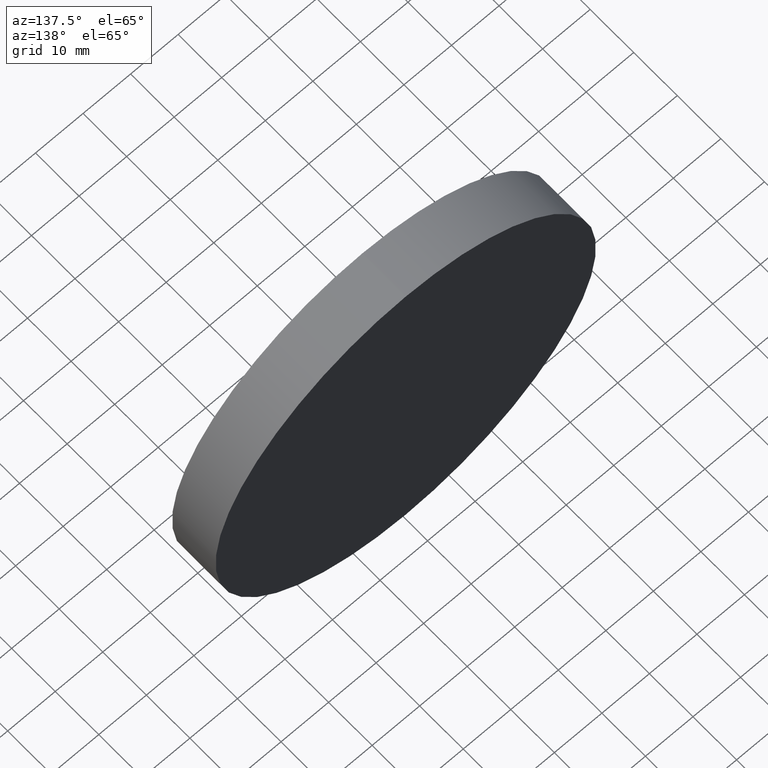
[diagram: clean part render]
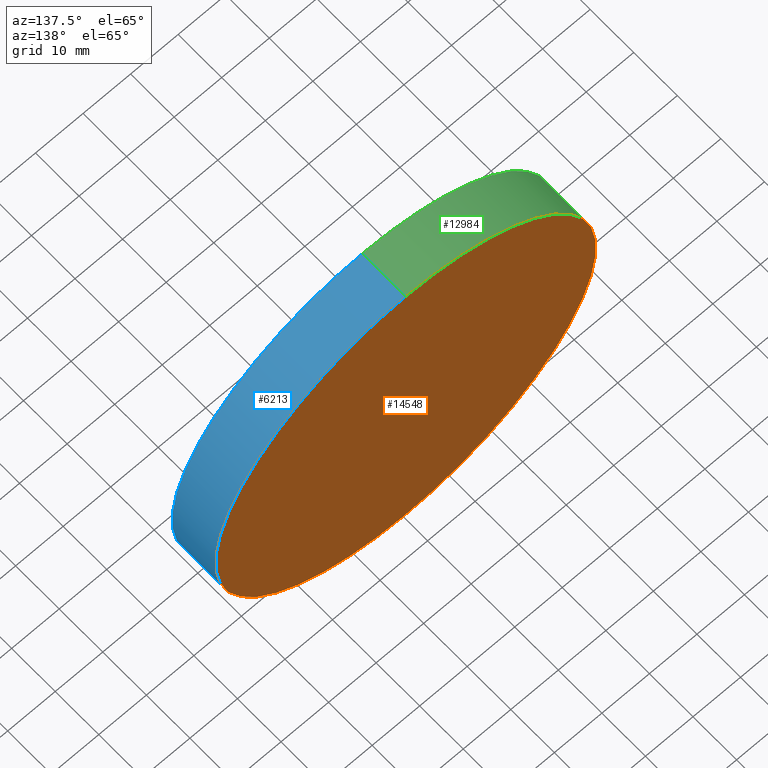
[diagram: same view with three faces highlighted in distinct colors, each labeled with its STEP entity id]
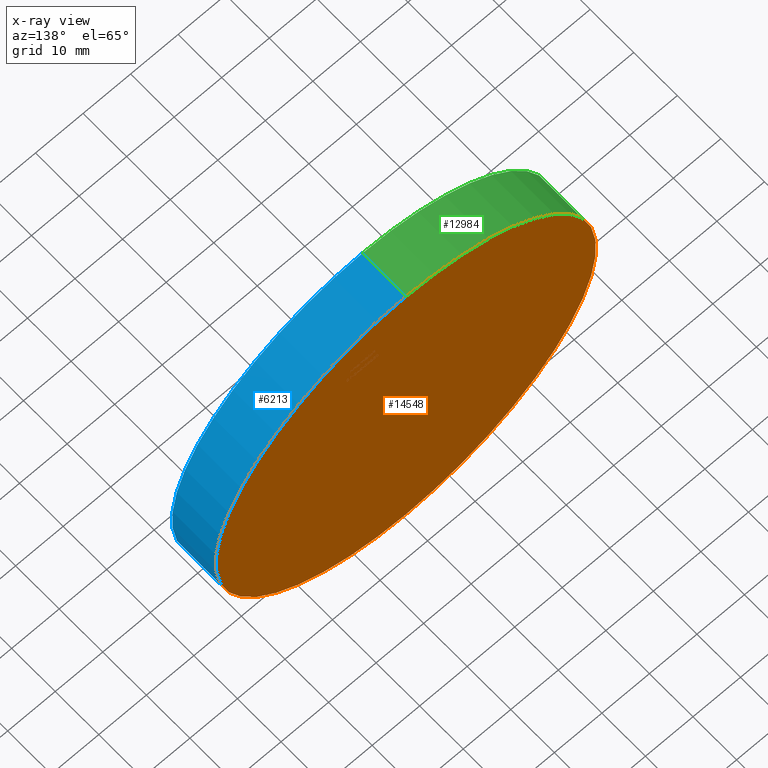
[diagram: x-ray of the same camera — body ghosted, the three highlighted faces saturated]
A machine part, auxiliary view with three faces highlighted in distinct colors.
The next image is the same camera in x-ray (body ghosted, the three faces saturated) — at least one of them is partly hidden behind the body in this view.
Their STEP definitions:

[orange] entity #14548 — the highlighted planar face has unit normal (0, 1, 0).
#717 = CARTESIAN_POINT ( 'NONE',  ( 4.898587196589413026E-15, 5.000000000000000000, 40.00000000000000000 ) ) ;
#1251 = VERTEX_POINT ( 'NONE', #7572 ) ;
#1418 = CIRCLE ( 'NONE', #2762, 40.00000000000000000 ) ;
#1722 = ORIENTED_EDGE ( 'NONE', *, *, #8379, .T. ) ;
#2037 = DIRECTION ( 'NONE',  ( 0.000000000000000000, 1.000000000000000000, 0.000000000000000000 ) ) ;
#2387 = DIRECTION ( 'NONE',  ( 0.000000000000000000, 1.000000000000000000, 0.000000000000000000 ) ) ;
#2762 = AXIS2_PLACEMENT_3D ( 'NONE', #7176, #2387, #4883 ) ;
#3752 = ORIENTED_EDGE ( 'NONE', *, *, #8071, .T. ) ;
#3914 = CARTESIAN_POINT ( 'NONE',  ( 0.000000000000000000, 5.000000000000000000, 0.000000000000000000 ) ) ;
#4883 = DIRECTION ( 'NONE',  ( 0.000000000000000000, 0.000000000000000000, 1.000000000000000000 ) ) ;
#5098 = FACE_OUTER_BOUND ( 'NONE', #10898, .T. ) ;
#6826 = PLANE ( 'NONE',  #9825 ) ;
#6982 = CARTESIAN_POINT ( 'NONE',  ( 0.000000000000000000, 5.000000000000000000, 0.000000000000000000 ) ) ;
#7176 = CARTESIAN_POINT ( 'NONE',  ( 0.000000000000000000, 5.000000000000000000, 0.000000000000000000 ) ) ;
#7572 = CARTESIAN_POINT ( 'NONE',  ( 0.000000000000000000, 5.000000000000000000, -40.00000000000000000 ) ) ;
#7720 = DIRECTION ( 'NONE',  ( 0.000000000000000000, 1.000000000000000000, 0.000000000000000000 ) ) ;
#8049 = DIRECTION ( 'NONE',  ( 0.000000000000000000, -0.000000000000000000, 1.000000000000000000 ) ) ;
#8071 = EDGE_CURVE ( 'NONE', #1251, #11713, #14583, .T. ) ;
#8379 = EDGE_CURVE ( 'NONE', #11713, #1251, #1418, .T. ) ;
#9825 = AXIS2_PLACEMENT_3D ( 'NONE', #6982, #2037, #8049 ) ;
#10898 = EDGE_LOOP ( 'NONE', ( #3752, #1722 ) ) ;
#11114 = DIRECTION ( 'NONE',  ( 0.000000000000000000, 0.000000000000000000, 1.000000000000000000 ) ) ;
#11713 = VERTEX_POINT ( 'NONE', #717 ) ;
#12597 = AXIS2_PLACEMENT_3D ( 'NONE', #3914, #7720, #11114 ) ;
#14548 = ADVANCED_FACE ( 'NONE', ( #5098 ), #6826, .T. ) ;
#14583 = CIRCLE ( 'NONE', #12597, 40.00000000000000000 ) ;

[blue] entity #6213 — the highlighted cylindrical surface (partial cylindrical patch) has radius 40 mm, axis along (-0, -1, -0).
#643 = CIRCLE ( 'NONE', #14615, 40.00000000000000000 ) ;
#717 = CARTESIAN_POINT ( 'NONE',  ( 4.898587196589413026E-15, 5.000000000000000000, 40.00000000000000000 ) ) ;
#1169 = DIRECTION ( 'NONE',  ( 0.000000000000000000, 0.000000000000000000, 1.000000000000000000 ) ) ;
#1251 = VERTEX_POINT ( 'NONE', #7572 ) ;
#1357 = CARTESIAN_POINT ( 'NONE',  ( 4.898587196589413026E-15, 5.000000000000000000, 40.00000000000000000 ) ) ;
#1418 = CIRCLE ( 'NONE', #2762, 40.00000000000000000 ) ;
#1918 = CARTESIAN_POINT ( 'NONE',  ( 4.898587196589413026E-15, -5.000000000000000000, 40.00000000000000000 ) ) ;
#2009 = EDGE_CURVE ( 'NONE', #11713, #8211, #14900, .T. ) ;
#2219 = ORIENTED_EDGE ( 'NONE', *, *, #2009, .T. ) ;
#2387 = DIRECTION ( 'NONE',  ( 0.000000000000000000, 1.000000000000000000, 0.000000000000000000 ) ) ;
#2412 = CYLINDRICAL_SURFACE ( 'NONE', #10403, 40.00000000000000000 ) ;
#2585 = FACE_OUTER_BOUND ( 'NONE', #7646, .T. ) ;
#2762 = AXIS2_PLACEMENT_3D ( 'NONE', #7176, #2387, #4883 ) ;
#4497 = ORIENTED_EDGE ( 'NONE', *, *, #13898, .F. ) ;
#4883 = DIRECTION ( 'NONE',  ( 0.000000000000000000, 0.000000000000000000, 1.000000000000000000 ) ) ;
#5770 = DIRECTION ( 'NONE',  ( 0.000000000000000000, 0.000000000000000000, -1.000000000000000000 ) ) ;
#6213 = ADVANCED_FACE ( 'NONE', ( #2585 ), #2412, .T. ) ;
#6896 = ORIENTED_EDGE ( 'NONE', *, *, #8379, .F. ) ;
#7176 = CARTESIAN_POINT ( 'NONE',  ( 0.000000000000000000, 5.000000000000000000, 0.000000000000000000 ) ) ;
#7200 = CARTESIAN_POINT ( 'NONE',  ( 0.000000000000000000, -5.000000000000000000, 0.000000000000000000 ) ) ;
#7276 = VERTEX_POINT ( 'NONE', #8815 ) ;
#7572 = CARTESIAN_POINT ( 'NONE',  ( 0.000000000000000000, 5.000000000000000000, -40.00000000000000000 ) ) ;
#7646 = EDGE_LOOP ( 'NONE', ( #6896, #2219, #9147, #4497 ) ) ;
#8211 = VERTEX_POINT ( 'NONE', #1918 ) ;
#8379 = EDGE_CURVE ( 'NONE', #11713, #1251, #1418, .T. ) ;
#8546 = VECTOR ( 'NONE', #10005, 1000.000000000000000 ) ;
#8815 = CARTESIAN_POINT ( 'NONE',  ( 0.000000000000000000, -5.000000000000000000, -40.00000000000000000 ) ) ;
#9062 = EDGE_CURVE ( 'NONE', #8211, #7276, #643, .T. ) ;
#9147 = ORIENTED_EDGE ( 'NONE', *, *, #9062, .T. ) ;
#10005 = DIRECTION ( 'NONE',  ( -0.000000000000000000, -1.000000000000000000, -0.000000000000000000 ) ) ;
#10403 = AXIS2_PLACEMENT_3D ( 'NONE', #11465, #12671, #5770 ) ;
#11325 = LINE ( 'NONE', #15359, #15068 ) ;
#11465 = CARTESIAN_POINT ( 'NONE',  ( 0.000000000000000000, 5.000000000000000000, 0.000000000000000000 ) ) ;
#11704 = DIRECTION ( 'NONE',  ( -0.000000000000000000, -1.000000000000000000, -0.000000000000000000 ) ) ;
#11713 = VERTEX_POINT ( 'NONE', #717 ) ;
#12119 = DIRECTION ( 'NONE',  ( 0.000000000000000000, 1.000000000000000000, 0.000000000000000000 ) ) ;
#12671 = DIRECTION ( 'NONE',  ( -0.000000000000000000, -1.000000000000000000, -0.000000000000000000 ) ) ;
#13898 = EDGE_CURVE ( 'NONE', #1251, #7276, #11325, .T. ) ;
#14615 = AXIS2_PLACEMENT_3D ( 'NONE', #7200, #12119, #1169 ) ;
#14900 = LINE ( 'NONE', #1357, #8546 ) ;
#15068 = VECTOR ( 'NONE', #11704, 1000.000000000000000 ) ;
#15359 = CARTESIAN_POINT ( 'NONE',  ( 0.000000000000000000, 5.000000000000000000, -40.00000000000000000 ) ) ;

[green] entity #12984 — the highlighted cylindrical surface (partial cylindrical patch) has radius 40 mm, axis along (-0, -1, -0).
#146 = ORIENTED_EDGE ( 'NONE', *, *, #13898, .T. ) ;
#305 = DIRECTION ( 'NONE',  ( -0.000000000000000000, -1.000000000000000000, -0.000000000000000000 ) ) ;
#717 = CARTESIAN_POINT ( 'NONE',  ( 4.898587196589413026E-15, 5.000000000000000000, 40.00000000000000000 ) ) ;
#1251 = VERTEX_POINT ( 'NONE', #7572 ) ;
#1351 = FACE_OUTER_BOUND ( 'NONE', #1426, .T. ) ;
#1357 = CARTESIAN_POINT ( 'NONE',  ( 4.898587196589413026E-15, 5.000000000000000000, 40.00000000000000000 ) ) ;
#1426 = EDGE_LOOP ( 'NONE', ( #2041, #7295, #146, #10840 ) ) ;
#1918 = CARTESIAN_POINT ( 'NONE',  ( 4.898587196589413026E-15, -5.000000000000000000, 40.00000000000000000 ) ) ;
#2009 = EDGE_CURVE ( 'NONE', #11713, #8211, #14900, .T. ) ;
#2041 = ORIENTED_EDGE ( 'NONE', *, *, #2009, .F. ) ;
#2853 = AXIS2_PLACEMENT_3D ( 'NONE', #14639, #3664, #10884 ) ;
#3664 = DIRECTION ( 'NONE',  ( 0.000000000000000000, 1.000000000000000000, 0.000000000000000000 ) ) ;
#3890 = CIRCLE ( 'NONE', #2853, 40.00000000000000000 ) ;
#3914 = CARTESIAN_POINT ( 'NONE',  ( 0.000000000000000000, 5.000000000000000000, 0.000000000000000000 ) ) ;
#7276 = VERTEX_POINT ( 'NONE', #8815 ) ;
#7295 = ORIENTED_EDGE ( 'NONE', *, *, #8071, .F. ) ;
#7562 = DIRECTION ( 'NONE',  ( 0.000000000000000000, 0.000000000000000000, -1.000000000000000000 ) ) ;
#7566 = EDGE_CURVE ( 'NONE', #7276, #8211, #3890, .T. ) ;
#7572 = CARTESIAN_POINT ( 'NONE',  ( 0.000000000000000000, 5.000000000000000000, -40.00000000000000000 ) ) ;
#7720 = DIRECTION ( 'NONE',  ( 0.000000000000000000, 1.000000000000000000, 0.000000000000000000 ) ) ;
#8071 = EDGE_CURVE ( 'NONE', #1251, #11713, #14583, .T. ) ;
#8211 = VERTEX_POINT ( 'NONE', #1918 ) ;
#8546 = VECTOR ( 'NONE', #10005, 1000.000000000000000 ) ;
#8815 = CARTESIAN_POINT ( 'NONE',  ( 0.000000000000000000, -5.000000000000000000, -40.00000000000000000 ) ) ;
#10005 = DIRECTION ( 'NONE',  ( -0.000000000000000000, -1.000000000000000000, -0.000000000000000000 ) ) ;
#10840 = ORIENTED_EDGE ( 'NONE', *, *, #7566, .T. ) ;
#10884 = DIRECTION ( 'NONE',  ( 0.000000000000000000, 0.000000000000000000, 1.000000000000000000 ) ) ;
#11114 = DIRECTION ( 'NONE',  ( 0.000000000000000000, 0.000000000000000000, 1.000000000000000000 ) ) ;
#11311 = CARTESIAN_POINT ( 'NONE',  ( 0.000000000000000000, 5.000000000000000000, 0.000000000000000000 ) ) ;
#11325 = LINE ( 'NONE', #15359, #15068 ) ;
#11704 = DIRECTION ( 'NONE',  ( -0.000000000000000000, -1.000000000000000000, -0.000000000000000000 ) ) ;
#11713 = VERTEX_POINT ( 'NONE', #717 ) ;
#12597 = AXIS2_PLACEMENT_3D ( 'NONE', #3914, #7720, #11114 ) ;
#12984 = ADVANCED_FACE ( 'NONE', ( #1351 ), #13391, .T. ) ;
#13391 = CYLINDRICAL_SURFACE ( 'NONE', #14721, 40.00000000000000000 ) ;
#13898 = EDGE_CURVE ( 'NONE', #1251, #7276, #11325, .T. ) ;
#14583 = CIRCLE ( 'NONE', #12597, 40.00000000000000000 ) ;
#14639 = CARTESIAN_POINT ( 'NONE',  ( 0.000000000000000000, -5.000000000000000000, 0.000000000000000000 ) ) ;
#14721 = AXIS2_PLACEMENT_3D ( 'NONE', #11311, #305, #7562 ) ;
#14900 = LINE ( 'NONE', #1357, #8546 ) ;
#15068 = VECTOR ( 'NONE', #11704, 1000.000000000000000 ) ;
#15359 = CARTESIAN_POINT ( 'NONE',  ( 0.000000000000000000, 5.000000000000000000, -40.00000000000000000 ) ) ;